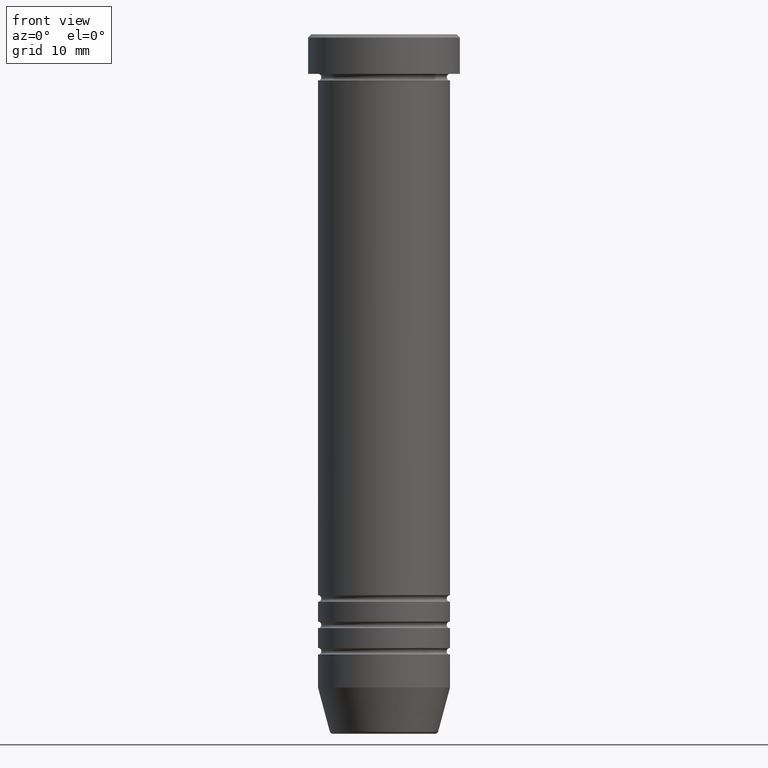
[diagram: clean part render]
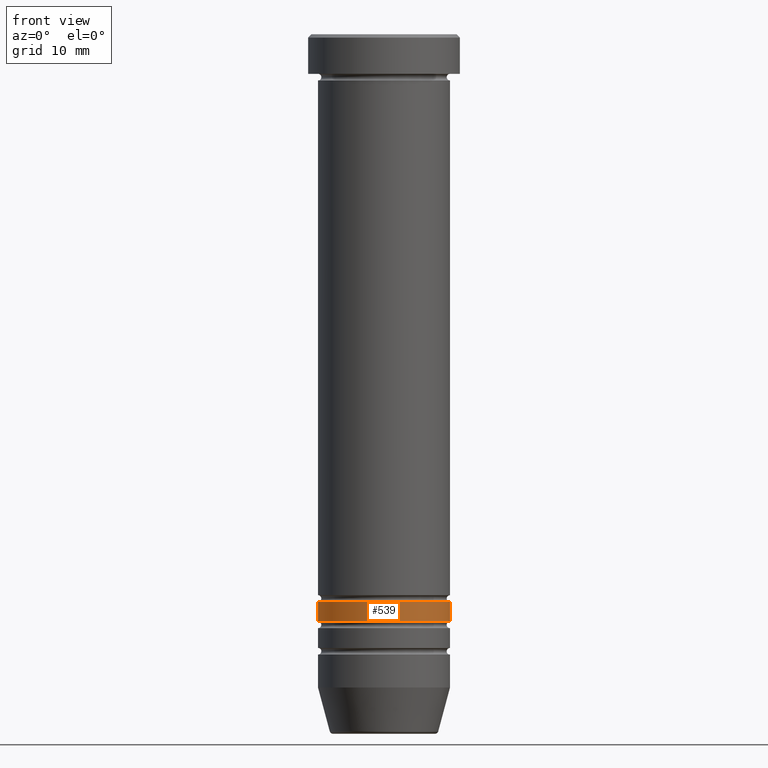
[diagram: same view with one face highlighted and labeled with its STEP entity id]
A machine part, front view. The second image highlights one B-rep face of the part: STEP entity #539.
In plain terms, the highlighted cylindrical surface (partial cylindrical patch) has radius 10 mm, axis along (-0, -0, 1).
Its self-contained STEP definition (entity closure, byte-faithful):
#5 = DIRECTION ( 'NONE',  ( 1.000000000000000000, 0.000000000000000000, 0.000000000000000000 ) ) ;
#8 = CARTESIAN_POINT ( 'NONE',  ( -9.999999999999998224, 1.224646799147353059E-15, -89.00000000000000000 ) ) ;
#54 = ORIENTED_EDGE ( 'NONE', *, *, #955, .T. ) ;
#72 = EDGE_CURVE ( 'NONE', #319, #316, #960, .T. ) ;
#80 = CARTESIAN_POINT ( 'NONE',  ( 0.000000000000000000, 0.000000000000000000, -89.00000000000000000 ) ) ;
#99 = EDGE_LOOP ( 'NONE', ( #453, #54, #395, #344 ) ) ;
#102 = CARTESIAN_POINT ( 'NONE',  ( -9.999999999999998224, 1.224646799147353059E-15, 0.000000000000000000 ) ) ;
#107 = VERTEX_POINT ( 'NONE', #8 ) ;
#160 = VECTOR ( 'NONE', #801, 1000.000000000000000 ) ;
#202 = DIRECTION ( 'NONE',  ( -0.000000000000000000, -0.000000000000000000, 1.000000000000000000 ) ) ;
#237 = DIRECTION ( 'NONE',  ( -0.000000000000000000, -0.000000000000000000, 1.000000000000000000 ) ) ;
#240 = CARTESIAN_POINT ( 'NONE',  ( 0.000000000000000000, 0.000000000000000000, 0.000000000000000000 ) ) ;
#278 = EDGE_CURVE ( 'NONE', #107, #1007, #805, .T. ) ;
#285 = CARTESIAN_POINT ( 'NONE',  ( 10.00000000000000000, 0.000000000000000000, -86.00000000000000000 ) ) ;
#316 = VERTEX_POINT ( 'NONE', #285 ) ;
#318 = CYLINDRICAL_SURFACE ( 'NONE', #561, 9.999999999999998224 ) ;
#319 = VERTEX_POINT ( 'NONE', #1085 ) ;
#344 = ORIENTED_EDGE ( 'NONE', *, *, #669, .F. ) ;
#367 = AXIS2_PLACEMENT_3D ( 'NONE', #80, #237, #5 ) ;
#395 = ORIENTED_EDGE ( 'NONE', *, *, #72, .T. ) ;
#410 = DIRECTION ( 'NONE',  ( -0.000000000000000000, -0.000000000000000000, 1.000000000000000000 ) ) ;
#421 = CIRCLE ( 'NONE', #367, 9.999999999999998224 ) ;
#453 = ORIENTED_EDGE ( 'NONE', *, *, #278, .F. ) ;
#539 = ADVANCED_FACE ( 'NONE', ( #893 ), #318, .T. ) ;
#561 = AXIS2_PLACEMENT_3D ( 'NONE', #240, #410, #665 ) ;
#612 = CARTESIAN_POINT ( 'NONE',  ( 9.999999999999998224, 0.000000000000000000, 0.000000000000000000 ) ) ;
#616 = AXIS2_PLACEMENT_3D ( 'NONE', #809, #202, #766 ) ;
#665 = DIRECTION ( 'NONE',  ( 1.000000000000000000, 0.000000000000000000, 0.000000000000000000 ) ) ;
#669 = EDGE_CURVE ( 'NONE', #1007, #316, #938, .T. ) ;
#679 = CARTESIAN_POINT ( 'NONE',  ( -10.00000000000000000, 1.224646799147353256E-15, -86.00000000000000000 ) ) ;
#766 = DIRECTION ( 'NONE',  ( 1.000000000000000000, 0.000000000000000000, 0.000000000000000000 ) ) ;
#801 = DIRECTION ( 'NONE',  ( -0.000000000000000000, -0.000000000000000000, 1.000000000000000000 ) ) ;
#805 = LINE ( 'NONE', #102, #160 ) ;
#809 = CARTESIAN_POINT ( 'NONE',  ( 0.000000000000000000, 0.000000000000000000, -86.00000000000000000 ) ) ;
#831 = VECTOR ( 'NONE', #978, 1000.000000000000000 ) ;
#893 = FACE_OUTER_BOUND ( 'NONE', #99, .T. ) ;
#938 = CIRCLE ( 'NONE', #616, 10.00000000000000000 ) ;
#955 = EDGE_CURVE ( 'NONE', #107, #319, #421, .T. ) ;
#960 = LINE ( 'NONE', #612, #831 ) ;
#978 = DIRECTION ( 'NONE',  ( -0.000000000000000000, -0.000000000000000000, 1.000000000000000000 ) ) ;
#1007 = VERTEX_POINT ( 'NONE', #679 ) ;
#1085 = CARTESIAN_POINT ( 'NONE',  ( 9.999999999999998224, 0.000000000000000000, -89.00000000000000000 ) ) ;